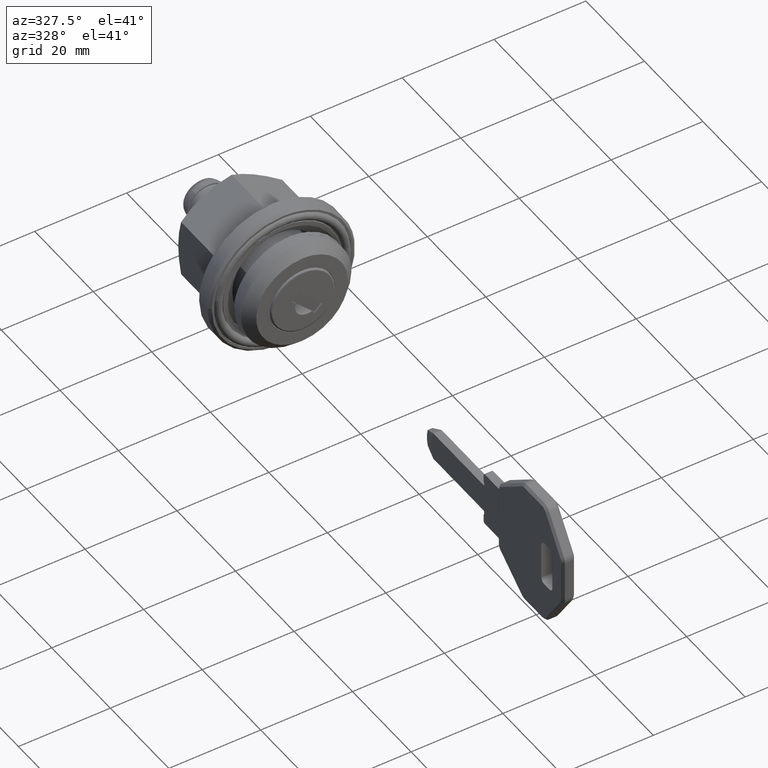
[diagram: clean part render]
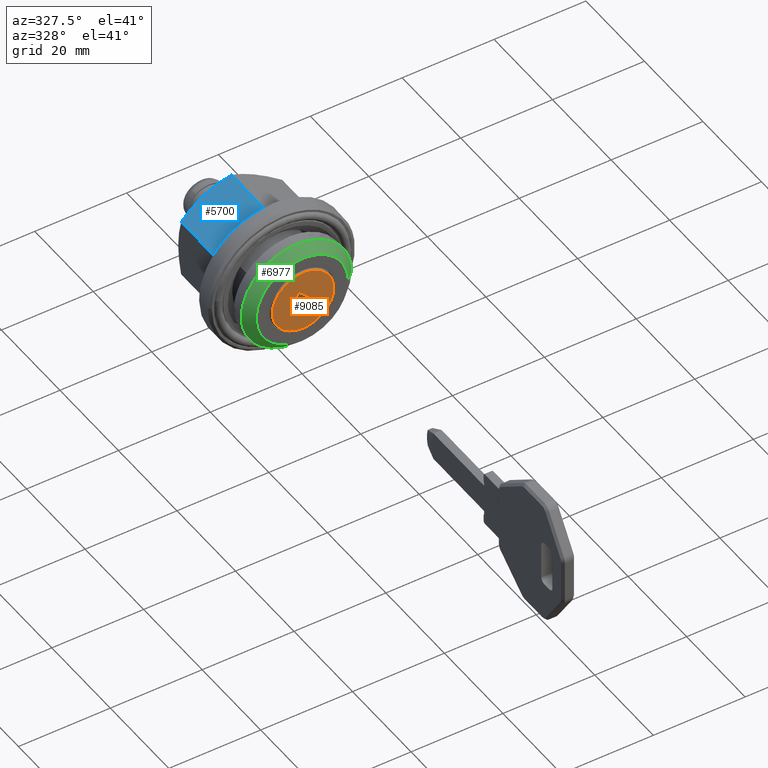
[diagram: same view with three faces highlighted in distinct colors, each labeled with its STEP entity id]
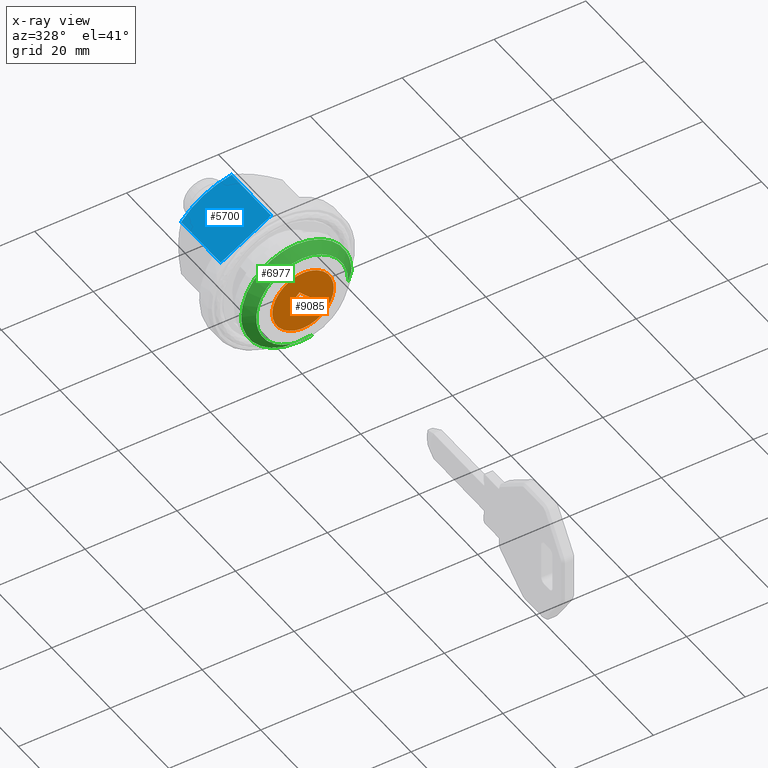
[diagram: x-ray of the same camera — body ghosted, the three highlighted faces saturated]
A machine part, auxiliary view with three faces highlighted in distinct colors.
The next image is the same camera in x-ray (body ghosted, the three faces saturated) — at least one of them is partly hidden behind the body in this view.
Their STEP definitions:

[orange] entity #9085 — the highlighted face is a freeform B-spline surface patch.
#7502=CARTESIAN_POINT('',(-0.300000000029608,6.697884129783779,0.168371642398623));
#7503=VERTEX_POINT('',#7502);
#7504=CARTESIAN_POINT('',(-0.300000000029598,9.820553E-010,-6.700000000060197));
#7505=VERTEX_POINT('',#7504);
#7506=CARTESIAN_POINT('',(-0.300000000029608,6.697884129783779,0.168371642398623));
#7507=CARTESIAN_POINT('',(-0.300000000029598,6.700000000982056,0.084199116631217));
#7508=CARTESIAN_POINT('',(-0.300000000029598,6.700000000982056,-6.019718E-011));
#7509=CARTESIAN_POINT('',(-0.300000000029598,6.700000000982056,-6.700000000060198));
#7510=CARTESIAN_POINT('',(-0.300000000029598,9.820553E-010,-6.700000000060197));
#7518=(BOUNDED_CURVE()B_SPLINE_CURVE(2,(#7506,#7507,#7508,#7509,#7510),.UNSPECIFIED.,.F.,.U.)B_SPLINE_CURVE_WITH_KNOTS((3,2,3),(0.245579891693311,0.250000000000000,0.500000000000000),.UNSPECIFIED.)CURVE()GEOMETRIC_REPRESENTATION_ITEM()RATIONAL_B_SPLINE_CURVE((0.989826157508672,0.994821521002199,1.0,0.707106781186547,1.0))REPRESENTATION_ITEM(''));
#7519=EDGE_CURVE('',#7503,#7505,#7518,.T.);
#7537=CARTESIAN_POINT('',(-0.300000000029608,-6.697884127819666,-0.168371642519015));
#7538=VERTEX_POINT('',#7537);
#7552=CARTESIAN_POINT('',(-0.300000000029598,9.820553E-010,-6.700000000060197));
#7553=CARTESIAN_POINT('',(-0.300000000029598,-6.533691766570992,-6.700000000060198));
#7554=CARTESIAN_POINT('',(-0.300000000029608,-6.697884127819666,-0.168371642519015));
#7562=(BOUNDED_CURVE()B_SPLINE_CURVE(2,(#7552,#7553,#7554),.UNSPECIFIED.,.F.,.U.)B_SPLINE_CURVE_WITH_KNOTS((3,3),(0.500000000000000,0.745579891693311),.UNSPECIFIED.)CURVE()GEOMETRIC_REPRESENTATION_ITEM()RATIONAL_B_SPLINE_CURVE((1.0,0.712285260184349,0.989826157508671))REPRESENTATION_ITEM(''));
#7563=EDGE_CURVE('',#7505,#7538,#7562,.T.);
#7591=CARTESIAN_POINT('',(-0.300000000029598,9.820553E-010,6.699999999939803));
#7592=VERTEX_POINT('',#7591);
#7593=CARTESIAN_POINT('',(-0.300000000029598,9.820553E-010,6.699999999939803));
#7594=CARTESIAN_POINT('',(-0.300000000029598,6.533691768535126,6.699999999939802));
#7595=CARTESIAN_POINT('',(-0.300000000029608,6.697884129783779,0.168371642398623));
#7603=(BOUNDED_CURVE()B_SPLINE_CURVE(2,(#7593,#7594,#7595),.UNSPECIFIED.,.F.,.U.)B_SPLINE_CURVE_WITH_KNOTS((3,3),(0.0,0.245579891693311),.UNSPECIFIED.)CURVE()GEOMETRIC_REPRESENTATION_ITEM()RATIONAL_B_SPLINE_CURVE((1.0,0.712285260184348,0.989826157508672))REPRESENTATION_ITEM(''));
#7604=EDGE_CURVE('',#7592,#7503,#7603,.T.);
#7606=CARTESIAN_POINT('',(-0.300000000029608,-6.697884127819666,-0.168371642519015));
#7607=CARTESIAN_POINT('',(-0.300000000029598,-6.699999999017945,-0.084199116751611));
#7608=CARTESIAN_POINT('',(-0.300000000029598,-6.699999999017945,-6.019718E-011));
#7609=CARTESIAN_POINT('',(-0.300000000029598,-6.699999999017946,6.699999999939803));
#7610=CARTESIAN_POINT('',(-0.300000000029598,9.820553E-010,6.699999999939803));
#7618=(BOUNDED_CURVE()B_SPLINE_CURVE(2,(#7606,#7607,#7608,#7609,#7610),.UNSPECIFIED.,.F.,.U.)B_SPLINE_CURVE_WITH_KNOTS((3,2,3),(0.745579891693311,0.750000000000000,1.0),.UNSPECIFIED.)CURVE()GEOMETRIC_REPRESENTATION_ITEM()RATIONAL_B_SPLINE_CURVE((0.989826157508672,0.994821521002199,1.0,0.707106781186547,1.0))REPRESENTATION_ITEM(''));
#7619=EDGE_CURVE('',#7538,#7592,#7618,.T.);
#8211=CARTESIAN_POINT('',(-0.300000000029610,1.603653680312280,0.048018761136384));
#8212=VERTEX_POINT('',#8211);
#8213=CARTESIAN_POINT('',(-0.300000000029610,-1.886496391299430,-3.442131310475295));
#8214=VERTEX_POINT('',#8213);
#8215=CARTESIAN_POINT('',(-0.300000000029610,1.603653680312280,0.048018761136384));
#8216=CARTESIAN_POINT('',(-0.300000000029598,2.231515389646689,-1.589629403043281));
#8217=CARTESIAN_POINT('',(-0.300000000029598,0.991333581263460,-2.829811211426498));
#8218=CARTESIAN_POINT('',(-0.300000000029598,-0.248848227119767,-4.069993019809718));
#8219=CARTESIAN_POINT('',(-0.300000000029610,-1.886496391299430,-3.442131310475295));
#8227=(BOUNDED_CURVE()B_SPLINE_CURVE(2,(#8215,#8216,#8217,#8218,#8219),.UNSPECIFIED.,.F.,.U.)B_SPLINE_CURVE_WITH_KNOTS((3,2,3),(0.0,0.500000000000000,1.0),.UNSPECIFIED.)CURVE()GEOMETRIC_REPRESENTATION_ITEM()RATIONAL_B_SPLINE_CURVE((1.0,0.838782530497370,1.0,0.838782530497370,1.0))REPRESENTATION_ITEM(''));
#8228=EDGE_CURVE('',#8212,#8214,#8227,.T.);
#9038=CARTESIAN_POINT('',(-0.300000000029598,7.367002728287474,-7.369329800424573));
#9039=CARTESIAN_POINT('',(-0.300000000029598,-7.367003085625864,-7.369329800424573));
#9040=CARTESIAN_POINT('',(-0.300000000029598,7.367002728287474,7.369329321082835));
#9041=CARTESIAN_POINT('',(-0.300000000029598,-7.367003085625864,7.369329321082835));
#9042=B_SPLINE_SURFACE_WITH_KNOTS('',1,1,((#9038,#9040),(#9039,#9041)),.UNSPECIFIED.,.F.,.F.,.U.,(2,2),(2,2),(0.0,14.734005813913340),(0.0,14.738659121507411),.UNSPECIFIED.);
#9043=ORIENTED_EDGE('',*,*,#7604,.T.);
#9044=ORIENTED_EDGE('',*,*,#7519,.T.);
#9045=ORIENTED_EDGE('',*,*,#7563,.T.);
#9046=ORIENTED_EDGE('',*,*,#7619,.T.);
#9047=EDGE_LOOP('',(#9043,#9044,#9045,#9046));
#9048=FACE_OUTER_BOUND('',#9047,.T.);
#9049=CARTESIAN_POINT('',(-0.300000000029610,-4.171930008256820,-2.616295090211905));
#9050=VERTEX_POINT('',#9049);
#9051=CARTESIAN_POINT('',(-0.300000000029610,0.777817460048965,2.333452378093710));
#9052=VERTEX_POINT('',#9051);
#9053=CARTESIAN_POINT('',(-0.300000000029610,-4.171930008256820,-2.616295090211905));
#9054=CARTESIAN_POINT('',(-0.300000000029610,0.777817460048965,2.333452378093710));
#9055=QUASI_UNIFORM_CURVE('',1,(#9053,#9054),.UNSPECIFIED.,.F.,.U.);
#9056=EDGE_CURVE('',#9050,#9052,#9055,.T.);
#9057=ORIENTED_EDGE('',*,*,#9056,.F.);
#9058=CARTESIAN_POINT('',(-0.300000000029598,-2.616295089646445,-4.171930008822300));
#9059=VERTEX_POINT('',#9058);
#9060=CARTESIAN_POINT('',(-0.300000000029598,-2.616295089646445,-4.171930008822300));
#9061=CARTESIAN_POINT('',(-0.300000000029610,-4.171930008256820,-2.616295090211905));
#9062=QUASI_UNIFORM_CURVE('',1,(#9060,#9061),.UNSPECIFIED.,.F.,.U.);
#9063=EDGE_CURVE('',#9059,#9050,#9062,.T.);
#9064=ORIENTED_EDGE('',*,*,#9063,.F.);
#9065=CARTESIAN_POINT('',(-0.300000000029610,-1.886496391299430,-3.442131310475295));
#9066=CARTESIAN_POINT('',(-0.300000000029598,-2.616295089646445,-4.171930008822300));
#9067=QUASI_UNIFORM_CURVE('',1,(#9065,#9066),.UNSPECIFIED.,.F.,.U.);
#9068=EDGE_CURVE('',#8214,#9059,#9067,.T.);
#9069=ORIENTED_EDGE('',*,*,#9068,.F.);
#9070=ORIENTED_EDGE('',*,*,#8228,.F.);
#9071=CARTESIAN_POINT('',(-0.300000000029610,2.333452378659415,0.777817459483515));
#9072=VERTEX_POINT('',#9071);
#9073=CARTESIAN_POINT('',(-0.300000000029610,2.333452378659415,0.777817459483515));
#9074=CARTESIAN_POINT('',(-0.300000000029610,1.603653680312280,0.048018761136384));
#9075=QUASI_UNIFORM_CURVE('',1,(#9073,#9074),.UNSPECIFIED.,.F.,.U.);
#9076=EDGE_CURVE('',#9072,#8212,#9075,.T.);
#9077=ORIENTED_EDGE('',*,*,#9076,.F.);
#9078=CARTESIAN_POINT('',(-0.300000000029610,0.777817460048965,2.333452378093710));
#9079=CARTESIAN_POINT('',(-0.300000000029610,2.333452378659415,0.777817459483515));
#9080=QUASI_UNIFORM_CURVE('',1,(#9078,#9079),.UNSPECIFIED.,.F.,.U.);
#9081=EDGE_CURVE('',#9052,#9072,#9080,.T.);
#9082=ORIENTED_EDGE('',*,*,#9081,.F.);
#9083=EDGE_LOOP('',(#9057,#9064,#9069,#9070,#9077,#9082));
#9084=FACE_BOUND('',#9083,.T.);
#9085=ADVANCED_FACE('',(#9048,#9084),#9042,.T.);

[blue] entity #5700 — the highlighted face is a freeform B-spline surface patch.
#5227=CARTESIAN_POINT('',(25.099999999990700,5.499999999934310,9.526279441514900));
#5228=VERTEX_POINT('',#5227);
#5356=CARTESIAN_POINT('',(24.117519627714799,11.000000000001000,6.350852960936421));
#5357=VERTEX_POINT('',#5356);
#5374=CARTESIAN_POINT('',(24.117519627714799,11.000000000001000,6.350852960936421));
#5375=CARTESIAN_POINT('',(24.416868185864079,10.101954325483760,6.869339872952057));
#5376=CARTESIAN_POINT('',(24.663585612728870,9.197361224573207,7.391606943269851));
#5377=CARTESIAN_POINT('',(24.919923412001179,7.826322278038849,8.183176648120936));
#5378=CARTESIAN_POINT('',(24.986367495871932,7.366945424795452,8.448397998000500));
#5379=CARTESIAN_POINT('',(25.076250467386920,6.442841779055915,8.981929486627342));
#5380=CARTESIAN_POINT('',(25.099652193975210,5.978110363644198,9.250242294416175));
#5381=CARTESIAN_POINT('',(25.099998711258710,5.507007270028351,9.522233792331354));
#5382=CARTESIAN_POINT('',(25.099999989930922,5.503503764146603,9.524256542395291));
#5383=CARTESIAN_POINT('',(25.099999999990700,5.499999999934310,9.526279441514900));
#5384=B_SPLINE_CURVE_WITH_KNOTS('',3,(#5374,#5375,#5376,#5377,#5378,#5379,#5380,#5381,#5382,#5383),.UNSPECIFIED.,.F.,.U.,(4,2,2,2,4),(0.0,0.250000000000000,0.375000000000000,0.500000000000000,0.500936495116300),.UNSPECIFIED.);
#5385=EDGE_CURVE('',#5357,#5228,#5384,.T.);
#5405=CARTESIAN_POINT('',(24.117519627714799,0.0,12.701705922097920));
#5406=VERTEX_POINT('',#5405);
#5407=CARTESIAN_POINT('',(25.099999999990700,5.499999999934310,9.526279441514900));
#5408=CARTESIAN_POINT('',(25.099998712487729,5.269668831534093,9.659261203685064));
#5409=CARTESIAN_POINT('',(25.094388939785009,5.038220666926058,9.792887863824960));
#5410=CARTESIAN_POINT('',(25.071955354638529,4.573887860039442,10.060970534874521));
#5411=CARTESIAN_POINT('',(25.054988386539069,4.340781666034908,10.195554458732810));
#5412=CARTESIAN_POINT('',(24.987826541826809,3.643795727727727,10.597959477835859));
#5413=CARTESIAN_POINT('',(24.921332707760371,3.182254080703449,10.864430671987559));
#5414=CARTESIAN_POINT('',(24.664569410949451,1.805846254649330,11.659100100874619));
#5415=CARTESIAN_POINT('',(24.417241351930279,0.899165172674744,12.182572667621789));
#5416=CARTESIAN_POINT('',(24.117519627714799,0.0,12.701705922097920));
#5417=B_SPLINE_CURVE_WITH_KNOTS('',3,(#5407,#5408,#5409,#5410,#5411,#5412,#5413,#5414,#5415,#5416),.UNSPECIFIED.,.F.,.U.,(4,2,2,2,4),(0.500936495144845,0.562500000000000,0.625000000000000,0.750000000000000,1.0),.UNSPECIFIED.);
#5418=EDGE_CURVE('',#5228,#5406,#5417,.T.);
#5662=CARTESIAN_POINT('',(10.599999999991001,11.0,6.350852961025400));
#5663=VERTEX_POINT('',#5662);
#5669=CARTESIAN_POINT('',(24.117519627714799,11.000000000001000,6.350852960936421));
#5670=CARTESIAN_POINT('',(10.599999999991001,11.0,6.350852961025400));
#5671=QUASI_UNIFORM_CURVE('',1,(#5669,#5670),.UNSPECIFIED.,.F.,.U.);
#5672=EDGE_CURVE('',#5357,#5663,#5671,.T.);
#5678=CARTESIAN_POINT('',(9.875725436441702,11.549449978721171,6.033627867904610));
#5679=CARTESIAN_POINT('',(9.875725436441702,-0.549450273725001,13.018931185552949));
#5680=CARTESIAN_POINT('',(25.824275341380609,11.549449978721171,6.033627867904610));
#5681=CARTESIAN_POINT('',(25.824275341380609,-0.549450273725001,13.018931185552949));
#5682=B_SPLINE_SURFACE_WITH_KNOTS('',1,1,((#5678,#5680),(#5679,#5681)),.UNSPECIFIED.,.F.,.F.,.U.,(2,2),(2,2),(0.0,13.970606635296511),(0.0,15.948549904938909),.UNSPECIFIED.);
#5683=ORIENTED_EDGE('',*,*,#5385,.F.);
#5684=ORIENTED_EDGE('',*,*,#5672,.T.);
#5685=CARTESIAN_POINT('',(10.599999999991001,-1.708703E-013,12.701705922111600));
#5686=VERTEX_POINT('',#5685);
#5687=CARTESIAN_POINT('',(10.599999999991001,-1.708703E-013,12.701705922111600));
#5688=CARTESIAN_POINT('',(10.599999999991001,11.0,6.350852961025400));
#5689=QUASI_UNIFORM_CURVE('',1,(#5687,#5688),.UNSPECIFIED.,.F.,.U.);
#5690=EDGE_CURVE('',#5686,#5663,#5689,.T.);
#5691=ORIENTED_EDGE('',*,*,#5690,.F.);
#5692=CARTESIAN_POINT('',(24.117519627714799,0.0,12.701705922097920));
#5693=CARTESIAN_POINT('',(10.599999999991001,-1.708703E-013,12.701705922111600));
#5694=QUASI_UNIFORM_CURVE('',1,(#5692,#5693),.UNSPECIFIED.,.F.,.U.);
#5695=EDGE_CURVE('',#5406,#5686,#5694,.T.);
#5696=ORIENTED_EDGE('',*,*,#5695,.F.);
#5697=ORIENTED_EDGE('',*,*,#5418,.F.);
#5698=EDGE_LOOP('',(#5683,#5684,#5691,#5696,#5697));
#5699=FACE_OUTER_BOUND('',#5698,.T.);
#5700=ADVANCED_FACE('',(#5699),#5682,.T.);

[green] entity #6977 — the highlighted face is a freeform B-spline surface patch.
#6807=CARTESIAN_POINT('',(-0.050000000000000,-2.244800048821087,-9.693470624187180));
#6808=CARTESIAN_POINT('',(-0.050000000000000,-1.094188004531439,-9.959927714052057));
#6809=CARTESIAN_POINT('',(-0.050000000000000,0.086829028208820,-9.949621134548698));
#6810=CARTESIAN_POINT('',(-0.050000000000000,10.036450162697321,-9.862792106339878));
#6811=CARTESIAN_POINT('',(-0.050000000000000,9.949621134488501,0.086829028148623));
#6812=CARTESIAN_POINT('',(-0.050000000000000,9.862792106279681,10.036450162637124));
#6813=CARTESIAN_POINT('',(-0.050000000000000,-0.086829028208820,9.949621134428304));
#6814=CARTESIAN_POINT('',(-0.050000000000000,-10.036450162697321,9.862792106219484));
#6815=CARTESIAN_POINT('',(-0.050000000000000,-9.949621134488501,-0.086829028269017));
#6816=CARTESIAN_POINT('',(2.051250000000000,-2.718858953603530,-11.740546518553693));
#6817=CARTESIAN_POINT('',(2.051250000000000,-1.325259617046181,-12.063274257672694));
#6818=CARTESIAN_POINT('',(2.051250000000000,0.105165660924778,-12.050791125387290));
#6819=CARTESIAN_POINT('',(2.051250000000001,12.155956786251865,-11.945625464462507));
#6820=CARTESIAN_POINT('',(2.051250000000000,12.050791125327089,0.105165660864581));
#6821=CARTESIAN_POINT('',(2.051250000000001,11.945625464402310,12.155956786191666));
#6822=CARTESIAN_POINT('',(2.051250000000000,-0.105165660924778,12.050791125266890));
#6823=CARTESIAN_POINT('',(2.051250000000001,-12.155956786251865,11.945625464342111));
#6824=CARTESIAN_POINT('',(2.051250000000000,-12.050791125327089,-0.105165660984976));
#6832=(BOUNDED_SURFACE()B_SPLINE_SURFACE(2,1,((#6807,#6816),(#6808,#6817),(#6809,#6818),(#6810,#6819),(#6811,#6820),(#6812,#6821),(#6813,#6822),(#6814,#6823),(#6815,#6824)),.UNSPECIFIED.,.F.,.F.,.U.)B_SPLINE_SURFACE_WITH_KNOTS((3,2,2,2,3),(2,2),(0.0,3.194746363871208,23.161911138066252,43.129075912261293,63.096240686456333),(0.0,2.971616247936464),.UNSPECIFIED.)GEOMETRIC_REPRESENTATION_ITEM()RATIONAL_B_SPLINE_SURFACE(((0.921270302782944,0.921270302782944),(0.953137084989848,0.953137084989848),(1.0,1.0),(0.707106781186548,0.707106781186548),(1.0,1.0),(0.707106781186548,0.707106781186548),(1.0,1.0),(0.707106781186548,0.707106781186548),(1.0,1.0)))REPRESENTATION_ITEM('')SURFACE());
#6833=CARTESIAN_POINT('',(2.000000000012016,-2.707296541397046,-11.690617838191249));
#6834=VERTEX_POINT('',#6833);
#6835=CARTESIAN_POINT('',(2.0,0.0,-12.000000000060201));
#6836=VERTEX_POINT('',#6835);
#6837=CARTESIAN_POINT('',(2.000000000012016,-2.707296541397047,-11.690617838191246));
#6838=CARTESIAN_POINT('',(2.000000000000000,-1.371325928263525,-12.000000000060203));
#6839=CARTESIAN_POINT('',(2.0,0.0,-12.000000000060201));
#6847=(BOUNDED_CURVE()B_SPLINE_CURVE(2,(#6837,#6838,#6839),.UNSPECIFIED.,.F.,.U.)B_SPLINE_CURVE_WITH_KNOTS((3,3),(0.461422971781744,0.500000000000000),.UNSPECIFIED.)CURVE()GEOMETRIC_REPRESENTATION_ITEM()RATIONAL_B_SPLINE_CURVE((0.923556557438144,0.954804200131591,1.0))REPRESENTATION_ITEM(''));
#6848=EDGE_CURVE('',#6834,#6836,#6847,.T.);
#6849=ORIENTED_EDGE('',*,*,#6848,.F.);
#6850=CARTESIAN_POINT('',(5.401071E-013,-2.256080451081214,-9.742181531845567));
#6851=VERTEX_POINT('',#6850);
#6852=CARTESIAN_POINT('',(5.401071E-013,-2.256080451081214,-9.742181531845567));
#6853=CARTESIAN_POINT('',(2.000000000012016,-2.707296541397046,-11.690617838191249));
#6854=QUASI_UNIFORM_CURVE('',1,(#6852,#6853),.UNSPECIFIED.,.F.,.U.);
#6855=EDGE_CURVE('',#6851,#6834,#6854,.T.);
#6856=ORIENTED_EDGE('',*,*,#6855,.F.);
#6857=CARTESIAN_POINT('',(0.0,0.0,-10.000000000060201));
#6858=VERTEX_POINT('',#6857);
#6859=CARTESIAN_POINT('',(0.0,0.0,-10.000000000060201));
#6860=CARTESIAN_POINT('',(0.0,-1.142771606802193,-10.000000000060197));
#6861=CARTESIAN_POINT('',(5.401071E-013,-2.256080451081215,-9.742181531845567));
#6869=(BOUNDED_CURVE()B_SPLINE_CURVE(2,(#6859,#6860,#6861),.UNSPECIFIED.,.F.,.U.)B_SPLINE_CURVE_WITH_KNOTS((3,3),(0.0,0.038577028215546),.UNSPECIFIED.)CURVE()GEOMETRIC_REPRESENTATION_ITEM()RATIONAL_B_SPLINE_CURVE((1.0,0.954804200134766,0.923556557442534))REPRESENTATION_ITEM(''));
#6870=EDGE_CURVE('',#6858,#6851,#6869,.T.);
#6871=ORIENTED_EDGE('',*,*,#6870,.F.);
#6872=CARTESIAN_POINT('',(0.0,0.0,9.999999999939803));
#6873=VERTEX_POINT('',#6872);
#6874=CARTESIAN_POINT('',(0.0,0.0,9.999999999939803));
#6875=CARTESIAN_POINT('',(0.0,10.000000000000002,9.999999999939803));
#6876=CARTESIAN_POINT('',(0.0,10.0,-6.019718E-011));
#6877=CARTESIAN_POINT('',(0.0,10.000000000000002,-10.000000000060199));
#6878=CARTESIAN_POINT('',(0.0,0.0,-10.000000000060201));
#6886=(BOUNDED_CURVE()B_SPLINE_CURVE(2,(#6874,#6875,#6876,#6877,#6878),.UNSPECIFIED.,.F.,.U.)B_SPLINE_CURVE_WITH_KNOTS((3,2,3),(0.500000000000000,0.750000000000000,1.0),.UNSPECIFIED.)CURVE()GEOMETRIC_REPRESENTATION_ITEM()RATIONAL_B_SPLINE_CURVE((1.0,0.707106781186548,1.0,0.707106781186548,1.0))REPRESENTATION_ITEM(''));
#6887=EDGE_CURVE('',#6873,#6858,#6886,.T.);
#6888=ORIENTED_EDGE('',*,*,#6887,.F.);
#6889=CARTESIAN_POINT('',(5.833370E-011,-9.999619230696316,-0.087265355471639));
#6890=VERTEX_POINT('',#6889);
#6891=CARTESIAN_POINT('',(5.833370E-011,-9.999619230696316,-0.087265355471639));
#6892=CARTESIAN_POINT('',(0.0,-9.999999999999998,-0.043633508694431));
#6893=CARTESIAN_POINT('',(0.0,-10.0,-6.019718E-011));
#6894=CARTESIAN_POINT('',(0.0,-10.000000000000002,9.999999999939803));
#6895=CARTESIAN_POINT('',(0.0,0.0,9.999999999939803));
#6903=(BOUNDED_CURVE()B_SPLINE_CURVE(2,(#6891,#6892,#6893,#6894,#6895),.UNSPECIFIED.,.F.,.U.)B_SPLINE_CURVE_WITH_KNOTS((3,2,3),(0.248460105649963,0.250000000000000,0.500000000000000),.UNSPECIFIED.)CURVE()GEOMETRIC_REPRESENTATION_ITEM()RATIONAL_B_SPLINE_CURVE((0.996414028065576,0.998195901548740,1.0,0.707106781186548,1.0))REPRESENTATION_ITEM(''));
#6904=EDGE_CURVE('',#6890,#6873,#6903,.T.);
#6905=ORIENTED_EDGE('',*,*,#6904,.F.);
#6906=CARTESIAN_POINT('',(2.000000000083499,-11.999543076848211,-0.104718426653011));
#6907=VERTEX_POINT('',#6906);
#6908=CARTESIAN_POINT('',(5.833370E-011,-9.999619230696316,-0.087265355471639));
#6909=CARTESIAN_POINT('',(2.000000000083499,-11.999543076848211,-0.104718426653011));
#6910=QUASI_UNIFORM_CURVE('',1,(#6908,#6909),.UNSPECIFIED.,.F.,.U.);
#6911=EDGE_CURVE('',#6890,#6907,#6910,.T.);
#6912=ORIENTED_EDGE('',*,*,#6911,.T.);
#6913=CARTESIAN_POINT('',(2.0,-11.907194565896940,1.489536024973877));
#6914=VERTEX_POINT('',#6913);
#6915=CARTESIAN_POINT('',(2.000000000000000,-11.907194565896944,1.489536024973878));
#6916=CARTESIAN_POINT('',(2.000000000000000,-12.000000000000002,0.747659130418749));
#6917=CARTESIAN_POINT('',(2.0,-12.0,-6.019718E-011));
#6918=CARTESIAN_POINT('',(2.000000000000000,-12.000000000000002,-0.052360210520258));
#6919=CARTESIAN_POINT('',(2.000000000083499,-11.999543076848214,-0.104718426653010));
#6927=(BOUNDED_CURVE()B_SPLINE_CURVE(2,(#6915,#6916,#6917,#6918,#6919),.UNSPECIFIED.,.F.,.U.)B_SPLINE_CURVE_WITH_KNOTS((3,2,3),(0.228526071027143,0.250000000000000,0.251539894352943),.UNSPECIFIED.)CURVE()GEOMETRIC_REPRESENTATION_ITEM()RATIONAL_B_SPLINE_CURVE((0.954005430270534,0.974841727290273,1.0,0.998195901545336,0.996414028058851))REPRESENTATION_ITEM(''));
#6928=EDGE_CURVE('',#6914,#6907,#6927,.T.);
#6929=ORIENTED_EDGE('',*,*,#6928,.F.);
#6930=CARTESIAN_POINT('',(2.0,0.0,11.999999999939799));
#6931=VERTEX_POINT('',#6930);
#6932=CARTESIAN_POINT('',(2.0,0.0,11.999999999939799));
#6933=CARTESIAN_POINT('',(2.000000000000000,-10.592383201666255,11.999999999939803));
#6934=CARTESIAN_POINT('',(2.000000000000000,-11.907194565896944,1.489536024973878));
#6942=(BOUNDED_CURVE()B_SPLINE_CURVE(2,(#6932,#6933,#6934),.UNSPECIFIED.,.F.,.U.)B_SPLINE_CURVE_WITH_KNOTS((3,3),(0.0,0.228526071027143),.UNSPECIFIED.)CURVE()GEOMETRIC_REPRESENTATION_ITEM()RATIONAL_B_SPLINE_CURVE((1.0,0.732265053896274,0.954005430270534))REPRESENTATION_ITEM(''));
#6943=EDGE_CURVE('',#6931,#6914,#6942,.T.);
#6944=ORIENTED_EDGE('',*,*,#6943,.F.);
#6945=CARTESIAN_POINT('',(2.0,11.999543076769340,-0.104718426122751));
#6946=VERTEX_POINT('',#6945);
#6947=CARTESIAN_POINT('',(2.000000000000000,11.999543076769344,-0.104718426122751));
#6948=CARTESIAN_POINT('',(2.000000000000000,11.999999999999996,-0.052360209990686));
#6949=CARTESIAN_POINT('',(2.0,12.0,-6.019718E-011));
#6950=CARTESIAN_POINT('',(2.000000000000000,12.0,11.999999999939803));
#6951=CARTESIAN_POINT('',(2.0,0.0,11.999999999939799));
#6959=(BOUNDED_CURVE()B_SPLINE_CURVE(2,(#6947,#6948,#6949,#6950,#6951),.UNSPECIFIED.,.F.,.U.)B_SPLINE_CURVE_WITH_KNOTS((3,2,3),(0.748460105662604,0.750000000000000,1.0),.UNSPECIFIED.)CURVE()GEOMETRIC_REPRESENTATION_ITEM()RATIONAL_B_SPLINE_CURVE((0.996414028094830,0.998195901563549,1.0,0.707106781186548,1.0))REPRESENTATION_ITEM(''));
#6960=EDGE_CURVE('',#6946,#6931,#6959,.T.);
#6961=ORIENTED_EDGE('',*,*,#6960,.F.);
#6962=CARTESIAN_POINT('',(2.0,0.0,-12.000000000060201));
#6963=CARTESIAN_POINT('',(2.0,11.895734526977087,-12.000000000060195));
#6964=CARTESIAN_POINT('',(2.000000000000000,11.999543076769335,-0.104718426122751));
#6972=(BOUNDED_CURVE()B_SPLINE_CURVE(2,(#6962,#6963,#6964),.UNSPECIFIED.,.F.,.U.)B_SPLINE_CURVE_WITH_KNOTS((3,3),(0.500000000000000,0.748460105662605),.UNSPECIFIED.)CURVE()GEOMETRIC_REPRESENTATION_ITEM()RATIONAL_B_SPLINE_CURVE((1.0,0.708910879622997,0.996414028094832))REPRESENTATION_ITEM(''));
#6973=EDGE_CURVE('',#6836,#6946,#6972,.T.);
#6974=ORIENTED_EDGE('',*,*,#6973,.F.);
#6975=EDGE_LOOP('',(#6849,#6856,#6871,#6888,#6905,#6912,#6929,#6944,#6961,#6974));
#6976=FACE_OUTER_BOUND('',#6975,.T.);
#6977=ADVANCED_FACE('',(#6976),#6832,.T.);